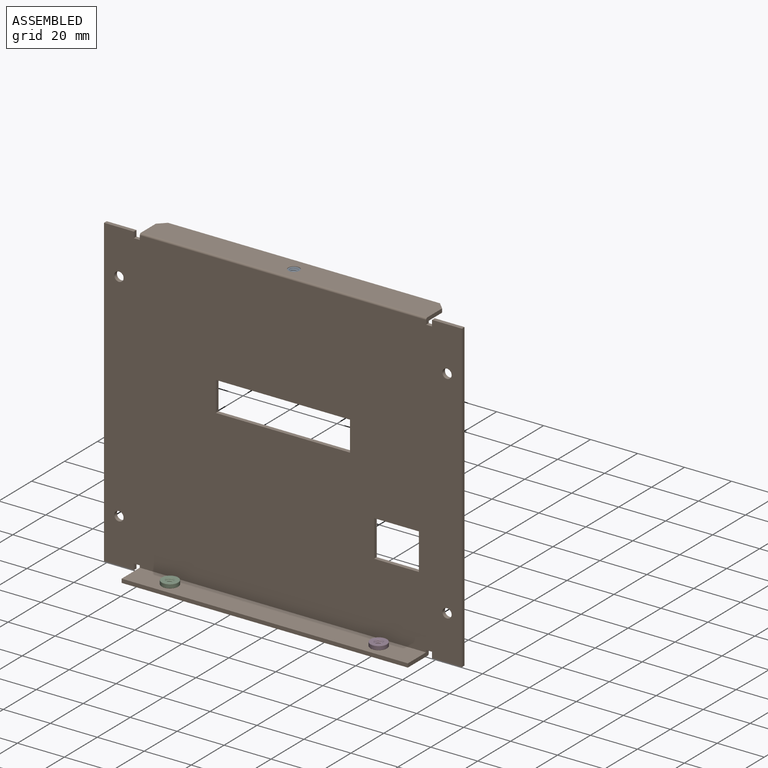
[diagram: assembled view]
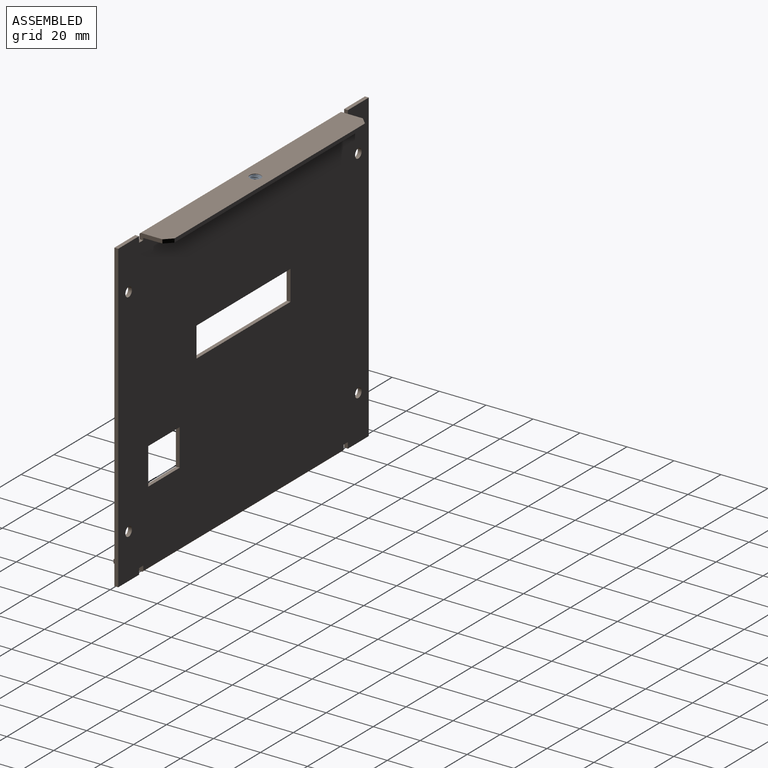
[diagram: assembled view, second angle]
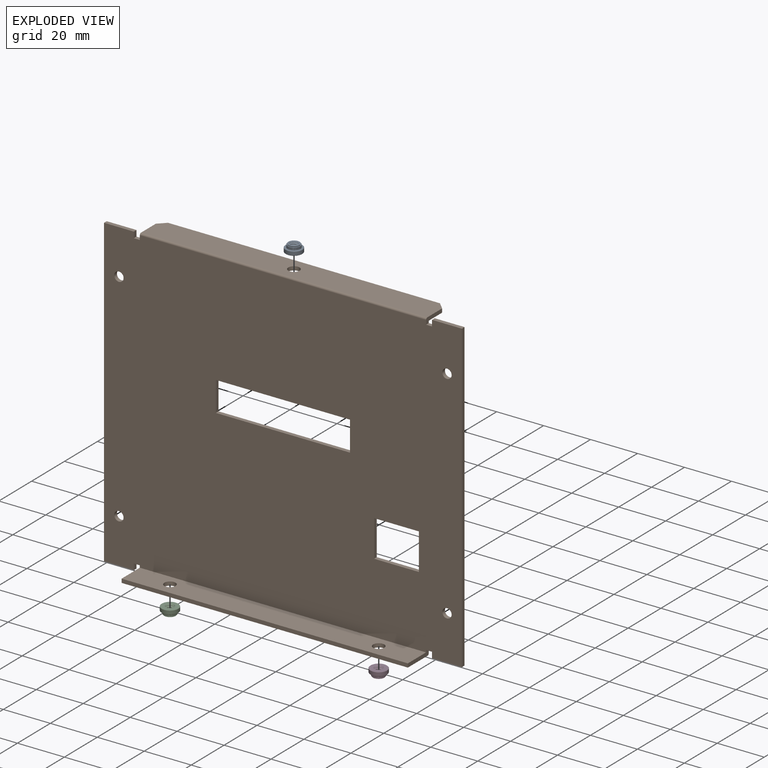
[diagram: exploded view]
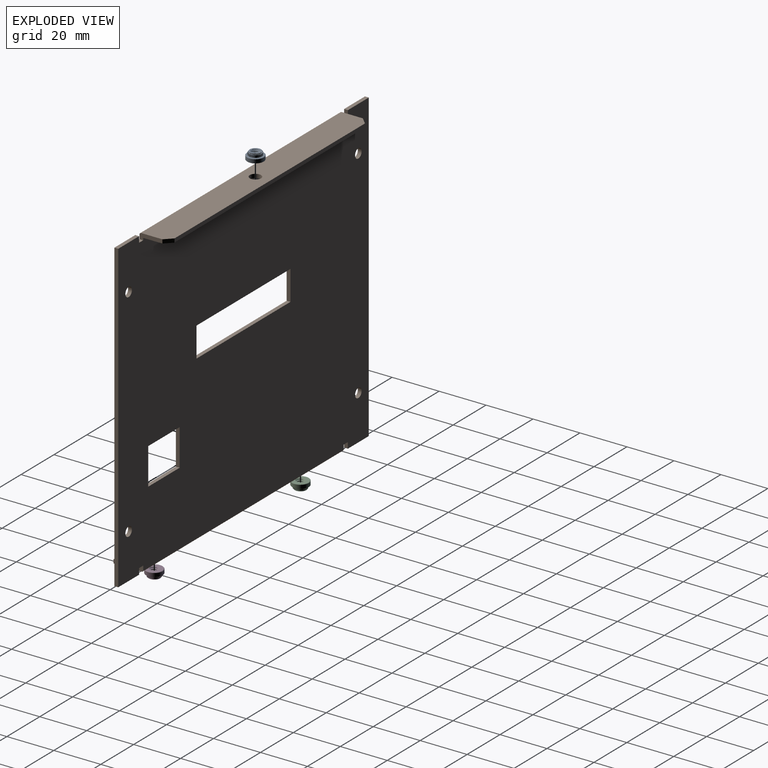
[diagram: exploded view, second angle]
ASSEMBLY  parts=4 mates=3
PART A: 159 faces, bbox 7.1x3.9x7.1 mm
  f0: bspline ~4.05x3.51mm, area 18.5mm2, adj f1,f3,f156,f157,f158
  f1: cylinder r=1.24mm len=2.47mm, axis (0,-1,0), area 2mm2, adj f0,f2,f156,f157,f158
  f2: bspline ~4.05x3.61mm, area 18.4mm2, adj f1,f3,f156,f158
  f3: cylinder r=1.75mm len=3.51mm, axis (0,-1,0), area 4.6mm2, adj f0,f2,f156,f158
  f4: cylinder r=2.71mm len=1.07mm, axis (0,-1,0), area 0.4mm2, adj f142,f146,f148,f151
  f5: cylinder r=2.71mm len=1.07mm, axis (0,-1,0), area 0.4mm2, adj f139,f143,f148,f151
  f6: cylinder r=2.71mm len=1.07mm, axis (0,-1,0), area 0.4mm2, adj f136,f140,f148,f151
  f7: cylinder r=2.71mm len=1.07mm, axis (0,-1,0), area 0.4mm2, adj f133,f137,f148,f151
  f8: cylinder r=2.71mm len=1.07mm, axis (0,-1,0), area 0.4mm2, adj f130,f134,f148,f151
  f9: cylinder r=2.71mm len=1.07mm, axis (0,-1,0), area 0.4mm2, adj f127,f131,f148,f151
  f10: cylinder r=2.71mm len=1.07mm, axis (0,-1,0), area 0.4mm2, adj f124,f128,f148,f151
  f11: cylinder r=2.71mm len=1.07mm, axis (0,-1,0), area 0.4mm2, adj f121,f125,f148,f151
  f12: cylinder r=2.71mm len=1.07mm, axis (0,-1,0), area 0.4mm2, adj f118,f122,f148,f151
  f13: cylinder r=2.71mm len=1.07mm, axis (0,-1,0), area 0.4mm2, adj f115,f119,f148,f151
  f14: cylinder r=2.71mm len=1.07mm, axis (0,-1,0), area 0.4mm2, adj f112,f116,f148,f151
  f15: cylinder r=2.71mm len=1.07mm, axis (0,-1,0), area 0.4mm2, adj f109,f113,f148,f151
  f16: cylinder r=2.71mm len=1.07mm, axis (0,-1,0), area 0.4mm2, adj f106,f110,f148,f151
  f17: cylinder r=2.71mm len=1.07mm, axis (0,-1,0), area 0.4mm2, adj f103,f107,f148,f151
  f18: cylinder r=2.71mm len=1.07mm, axis (0,-1,0), area 0.4mm2, adj f100,f104,f148,f151
  f19: cylinder r=2.71mm len=1.07mm, axis (0,-1,0), area 0.4mm2, adj f97,f101,f148,f151
  f20: cylinder r=2.71mm len=1.07mm, axis (0,-1,0), area 0.4mm2, adj f94,f98,f148,f151
  f21: cylinder r=2.71mm len=1.07mm, axis (0,-1,0), area 0.4mm2, adj f91,f95,f148,f151
  f22: cylinder r=2.71mm len=1.07mm, axis (0,-1,0), area 0.4mm2, adj f88,f92,f148,f151
  f23: cylinder r=2.71mm len=1.07mm, axis (0,-1,0), area 0.4mm2, adj f85,f89,f148,f151
  f24: cylinder r=2.71mm len=1.07mm, axis (0,-1,0), area 0.4mm2, adj f82,f86,f148,f151
  f25: cylinder r=2.71mm len=1.07mm, axis (0,-1,0), area 0.4mm2, adj f79,f83,f148,f151
  f26: cylinder r=2.71mm len=1.07mm, axis (0,-1,0), area 0.4mm2, adj f76,f80,f148,f151
  f27: cylinder r=2.71mm len=1.07mm, axis (0,-1,0), area 0.4mm2, adj f73,f77,f148,f151
  f28: cylinder r=2.71mm len=1.07mm, axis (0,-1,0), area 0.4mm2, adj f70,f74,f148,f151
  f29: cylinder r=2.71mm len=1.07mm, axis (0,-1,0), area 0.4mm2, adj f67,f71,f148,f151
  f30: cylinder r=2.71mm len=1.07mm, axis (0,-1,0), area 0.4mm2, adj f64,f68,f148,f151
  f31: cylinder r=2.71mm len=1.07mm, axis (0,-1,0), area 0.4mm2, adj f61,f65,f148,f151
  f32: cylinder r=2.71mm len=1.07mm, axis (0,-1,0), area 0.4mm2, adj f58,f62,f148,f151
  f33: cylinder r=2.71mm len=1.07mm, axis (0,-1,0), area 0.4mm2, adj f55,f59,f148,f151
  f34: cylinder r=2.71mm len=1.07mm, axis (0,-1,0), area 0.4mm2, adj f52,f56,f148,f151
  f35: cylinder r=2.71mm len=1.07mm, axis (0,-1,0), area 0.4mm2, adj f49,f53,f148,f151
  f36: cylinder r=2.71mm len=1.07mm, axis (0,-1,0), area 0.4mm2, adj f46,f50,f148,f151
  f37: cylinder r=2.71mm len=1.07mm, axis (0,-1,0), area 0.4mm2, adj f43,f47,f148,f151
  f38: cylinder r=2.71mm len=1.07mm, axis (0,-1,0), area 0.4mm2, adj f40,f44,f148,f151
  f39: cylinder r=2.71mm len=1.07mm, axis (0,-1,0), area 0.4mm2, adj f41,f145,f148,f151
  f40: plane 1.07x0.19mm, normal (1,0,0), area 0.2mm2, adj f38,f42,f148,f151
  f41: plane 1.07x0.19mm, normal (-1,0,0), area 0.2mm2, adj f39,f42,f148,f151
  f42: plane 1.07x0.13mm, normal (0,0,1), area 0.1mm2, adj f40,f41,f148,f151
  f43: plane 1.07x0.19mm, normal (0.98,0,0.17), area 0.2mm2, adj f37,f45,f148,f151
  f44: plane 1.07x0.19mm, normal (-0.98,0,-0.17), area 0.2mm2, adj f38,f45,f148,f151
  f45: plane 1.07x0.13mm, normal (-0.17,0,0.98), area 0.1mm2, adj f43,f44,f148,f151
  f46: plane 1.07x0.18mm, normal (0.94,0,0.34), area 0.2mm2, adj f36,f48,f148,f151
  f47: plane 1.07x0.18mm, normal (-0.94,0,-0.34), area 0.2mm2, adj f37,f48,f148,f151
  f48: plane 1.07x0.12mm, normal (-0.34,0,0.94), area 0.1mm2, adj f46,f47,f148,f151
  f49: plane 1.07x0.16mm, normal (0.87,0,0.5), area 0.2mm2, adj f35,f51,f148,f151
  f50: plane 1.07x0.16mm, normal (-0.87,0,-0.5), area 0.2mm2, adj f36,f51,f148,f151
  f51: plane 1.07x0.11mm, normal (-0.5,0,0.87), area 0.1mm2, adj f49,f50,f148,f151
  f52: plane 1.07x0.15mm, normal (0.77,0,0.64), area 0.2mm2, adj f34,f54,f148,f151
  f53: plane 1.07x0.15mm, normal (-0.77,0,-0.64), area 0.2mm2, adj f35,f54,f148,f151
  f54: plane 1.07x0.1mm, normal (-0.64,0,0.77), area 0.1mm2, adj f52,f53,f148,f151
  f55: plane 1.07x0.15mm, normal (0.64,0,0.77), area 0.2mm2, adj f33,f57,f148,f151
  f56: plane 1.07x0.15mm, normal (-0.64,0,-0.77), area 0.2mm2, adj f34,f57,f148,f151
  f57: plane 1.07x0.1mm, normal (-0.77,0,0.64), area 0.1mm2, adj f55,f56,f148,f151
  f58: plane 1.07x0.16mm, normal (0.5,0,0.87), area 0.2mm2, adj f32,f60,f148,f151
  f59: plane 1.07x0.16mm, normal (-0.5,0,-0.87), area 0.2mm2, adj f33,f60,f148,f151
  f60: plane 1.07x0.11mm, normal (-0.87,0,0.5), area 0.1mm2, adj f58,f59,f148,f151
  f61: plane 1.07x0.18mm, normal (0.34,0,0.94), area 0.2mm2, adj f31,f63,f148,f151
  f62: plane 1.07x0.18mm, normal (-0.34,0,-0.94), area 0.2mm2, adj f32,f63,f148,f151
  f63: plane 1.07x0.12mm, normal (-0.94,0,0.34), area 0.1mm2, adj f61,f62,f148,f151
  f64: plane 1.07x0.19mm, normal (0.17,0,0.98), area 0.2mm2, adj f30,f66,f148,f151
  f65: plane 1.07x0.19mm, normal (-0.17,0,-0.98), area 0.2mm2, adj f31,f66,f148,f151
  f66: plane 1.07x0.13mm, normal (-0.98,0,0.17), area 0.1mm2, adj f64,f65,f148,f151
  f67: plane 1.07x0.19mm, normal (0,0,1), area 0.2mm2, adj f29,f69,f148,f151
  f68: plane 1.07x0.19mm, normal (0,0,-1), area 0.2mm2, adj f30,f69,f148,f151
  f69: plane 1.07x0.13mm, normal (-1,0,0), area 0.1mm2, adj f67,f68,f148,f151
  f70: plane 1.07x0.19mm, normal (-0.17,0,0.98), area 0.2mm2, adj f28,f72,f148,f151
  f71: plane 1.07x0.19mm, normal (0.17,0,-0.98), area 0.2mm2, adj f29,f72,f148,f151
  f72: plane 1.07x0.13mm, normal (-0.98,0,-0.17), area 0.1mm2, adj f70,f71,f148,f151
  f73: plane 1.07x0.18mm, normal (-0.34,0,0.94), area 0.2mm2, adj f27,f75,f148,f151
  f74: plane 1.07x0.18mm, normal (0.34,0,-0.94), area 0.2mm2, adj f28,f75,f148,f151
  f75: plane 1.07x0.12mm, normal (-0.94,0,-0.34), area 0.1mm2, adj f73,f74,f148,f151
  f76: plane 1.07x0.16mm, normal (-0.5,0,0.87), area 0.2mm2, adj f26,f78,f148,f151
  f77: plane 1.07x0.16mm, normal (0.5,0,-0.87), area 0.2mm2, adj f27,f78,f148,f151
  f78: plane 1.07x0.11mm, normal (-0.87,0,-0.5), area 0.1mm2, adj f76,f77,f148,f151
  f79: plane 1.07x0.15mm, normal (-0.64,0,0.77), area 0.2mm2, adj f25,f81,f148,f151
  f80: plane 1.07x0.15mm, normal (0.64,0,-0.77), area 0.2mm2, adj f26,f81,f148,f151
  f81: plane 1.07x0.1mm, normal (-0.77,0,-0.64), area 0.1mm2, adj f79,f80,f148,f151
  f82: plane 1.07x0.15mm, normal (-0.77,0,0.64), area 0.2mm2, adj f24,f84,f148,f151
  f83: plane 1.07x0.15mm, normal (0.77,0,-0.64), area 0.2mm2, adj f25,f84,f148,f151
  f84: plane 1.07x0.1mm, normal (-0.64,0,-0.77), area 0.1mm2, adj f82,f83,f148,f151
  f85: plane 1.07x0.16mm, normal (-0.87,0,0.5), area 0.2mm2, adj f23,f87,f148,f151
  f86: plane 1.07x0.16mm, normal (0.87,0,-0.5), area 0.2mm2, adj f24,f87,f148,f151
  f87: plane 1.07x0.11mm, normal (-0.5,0,-0.87), area 0.1mm2, adj f85,f86,f148,f151
  f88: plane 1.07x0.18mm, normal (-0.94,0,0.34), area 0.2mm2, adj f22,f90,f148,f151
  f89: plane 1.07x0.18mm, normal (0.94,0,-0.34), area 0.2mm2, adj f23,f90,f148,f151
  f90: plane 1.07x0.12mm, normal (-0.34,0,-0.94), area 0.1mm2, adj f88,f89,f148,f151
  f91: plane 1.07x0.19mm, normal (-0.98,0,0.17), area 0.2mm2, adj f21,f93,f148,f151
  f92: plane 1.07x0.19mm, normal (0.98,0,-0.17), area 0.2mm2, adj f22,f93,f148,f151
  f93: plane 1.07x0.13mm, normal (-0.17,0,-0.98), area 0.1mm2, adj f91,f92,f148,f151
  f94: plane 1.07x0.19mm, normal (-1,0,0), area 0.2mm2, adj f20,f96,f148,f151
  f95: plane 1.07x0.19mm, normal (1,0,0), area 0.2mm2, adj f21,f96,f148,f151
  f96: plane 1.07x0.13mm, normal (0,0,-1), area 0.1mm2, adj f94,f95,f148,f151
  f97: plane 1.07x0.19mm, normal (-0.98,0,-0.17), area 0.2mm2, adj f19,f99,f148,f151
  f98: plane 1.07x0.19mm, normal (0.98,0,0.17), area 0.2mm2, adj f20,f99,f148,f151
  f99: plane 1.07x0.13mm, normal (0.17,0,-0.98), area 0.1mm2, adj f97,f98,f148,f151
  f100: plane 1.07x0.18mm, normal (-0.94,0,-0.34), area 0.2mm2, adj f18,f102,f148,f151
  f101: plane 1.07x0.18mm, normal (0.94,0,0.34), area 0.2mm2, adj f19,f102,f148,f151
  f102: plane 1.07x0.12mm, normal (0.34,0,-0.94), area 0.1mm2, adj f100,f101,f148,f151
  f103: plane 1.07x0.16mm, normal (-0.87,0,-0.5), area 0.2mm2, adj f17,f105,f148,f151
  f104: plane 1.07x0.16mm, normal (0.87,0,0.5), area 0.2mm2, adj f18,f105,f148,f151
  f105: plane 1.07x0.11mm, normal (0.5,0,-0.87), area 0.1mm2, adj f103,f104,f148,f151
  f106: plane 1.07x0.15mm, normal (-0.77,0,-0.64), area 0.2mm2, adj f16,f108,f148,f151
  f107: plane 1.07x0.15mm, normal (0.77,0,0.64), area 0.2mm2, adj f17,f108,f148,f151
  f108: plane 1.07x0.1mm, normal (0.64,0,-0.77), area 0.1mm2, adj f106,f107,f148,f151
  f109: plane 1.07x0.15mm, normal (-0.64,0,-0.77), area 0.2mm2, adj f15,f111,f148,f151
  f110: plane 1.07x0.15mm, normal (0.64,0,0.77), area 0.2mm2, adj f16,f111,f148,f151
  f111: plane 1.07x0.1mm, normal (0.77,0,-0.64), area 0.1mm2, adj f109,f110,f148,f151
  f112: plane 1.07x0.16mm, normal (-0.5,0,-0.87), area 0.2mm2, adj f14,f114,f148,f151
  f113: plane 1.07x0.16mm, normal (0.5,0,0.87), area 0.2mm2, adj f15,f114,f148,f151
  f114: plane 1.07x0.11mm, normal (0.87,0,-0.5), area 0.1mm2, adj f112,f113,f148,f151
  f115: plane 1.07x0.18mm, normal (-0.34,0,-0.94), area 0.2mm2, adj f13,f117,f148,f151
  f116: plane 1.07x0.18mm, normal (0.34,0,0.94), area 0.2mm2, adj f14,f117,f148,f151
  f117: plane 1.07x0.12mm, normal (0.94,0,-0.34), area 0.1mm2, adj f115,f116,f148,f151
  f118: plane 1.07x0.19mm, normal (-0.17,0,-0.98), area 0.2mm2, adj f12,f120,f148,f151
  f119: plane 1.07x0.19mm, normal (0.17,0,0.98), area 0.2mm2, adj f13,f120,f148,f151
  f120: plane 1.07x0.13mm, normal (0.98,0,-0.17), area 0.1mm2, adj f118,f119,f148,f151
  f121: plane 1.07x0.19mm, normal (0,0,-1), area 0.2mm2, adj f11,f123,f148,f151
  f122: plane 1.07x0.19mm, normal (0,0,1), area 0.2mm2, adj f12,f123,f148,f151
  f123: plane 1.07x0.13mm, normal (1,0,0), area 0.1mm2, adj f121,f122,f148,f151
  f124: plane 1.07x0.19mm, normal (0.17,0,-0.98), area 0.2mm2, adj f10,f126,f148,f151
  f125: plane 1.07x0.19mm, normal (-0.17,0,0.98), area 0.2mm2, adj f11,f126,f148,f151
  f126: plane 1.07x0.13mm, normal (0.98,0,0.17), area 0.1mm2, adj f124,f125,f148,f151
  f127: plane 1.07x0.18mm, normal (0.34,0,-0.94), area 0.2mm2, adj f9,f129,f148,f151
  f128: plane 1.07x0.18mm, normal (-0.34,0,0.94), area 0.2mm2, adj f10,f129,f148,f151
  f129: plane 1.07x0.12mm, normal (0.94,0,0.34), area 0.1mm2, adj f127,f128,f148,f151
  f130: plane 1.07x0.16mm, normal (0.5,0,-0.87), area 0.2mm2, adj f8,f132,f148,f151
  f131: plane 1.07x0.16mm, normal (-0.5,0,0.87), area 0.2mm2, adj f9,f132,f148,f151
  f132: plane 1.07x0.11mm, normal (0.87,0,0.5), area 0.1mm2, adj f130,f131,f148,f151
  f133: plane 1.07x0.15mm, normal (0.64,0,-0.77), area 0.2mm2, adj f7,f135,f148,f151
  f134: plane 1.07x0.15mm, normal (-0.64,0,0.77), area 0.2mm2, adj f8,f135,f148,f151
  f135: plane 1.07x0.1mm, normal (0.77,0,0.64), area 0.1mm2, adj f133,f134,f148,f151
  f136: plane 1.07x0.15mm, normal (0.77,0,-0.64), area 0.2mm2, adj f6,f138,f148,f151
  f137: plane 1.07x0.15mm, normal (-0.77,0,0.64), area 0.2mm2, adj f7,f138,f148,f151
  f138: plane 1.07x0.1mm, normal (0.64,0,0.77), area 0.1mm2, adj f136,f137,f148,f151
  f139: plane 1.07x0.16mm, normal (0.87,0,-0.5), area 0.2mm2, adj f5,f141,f148,f151
  f140: plane 1.07x0.16mm, normal (-0.87,0,0.5), area 0.2mm2, adj f6,f141,f148,f151
  f141: plane 1.07x0.11mm, normal (0.5,0,0.87), area 0.1mm2, adj f139,f140,f148,f151
  f142: plane 1.07x0.18mm, normal (0.94,0,-0.34), area 0.2mm2, adj f4,f144,f148,f151
  f143: plane 1.07x0.18mm, normal (-0.94,0,0.34), area 0.2mm2, adj f5,f144,f148,f151
  f144: plane 1.07x0.12mm, normal (0.34,0,0.94), area 0.1mm2, adj f142,f143,f148,f151
  f145: plane 1.07x0.19mm, normal (0.98,0,-0.17), area 0.2mm2, adj f39,f147,f148,f151
  f146: plane 1.07x0.19mm, normal (-0.98,0,0.17), area 0.2mm2, adj f4,f147,f148,f151
  f147: plane 1.07x0.13mm, normal (0.17,0,0.98), area 0.1mm2, adj f145,f146,f148,f151
  f148: plane 6.86x6.86mm, normal (0,1,0), area 14.8mm2, adj f4,f5,f6,f7,f8,f9,f10,f11
  f149: cylinder r=3.56mm len=7.11mm, axis (0,-1,0), area 34.1mm2, adj f154,f155
  f150: plane 6.86x6.86mm, normal (0,-1,0), area 26.7mm2, adj f154,f156
  f151: plane 5.41x5.41mm, normal (0,1,0), area 5.7mm2, adj f4,f5,f6,f7,f8,f9,f10,f11
  f152: cone r=2.41mm half-angle=20deg, axis (0,1,0), area 5.6mm2, adj f151,f153
  f153: plane 4.83x4.83mm, normal (0,1,0), area 8.1mm2, adj f152,f158
  f154: cone r=3.43mm half-angle=45deg, axis (0,1,0), area 3.9mm2, adj f149,f150
  f155: cone r=3.56mm half-angle=45deg, axis (0,-1,0), area 3.9mm2, adj f148,f149
  f156: cone r=1.8mm half-angle=45deg, axis (0,-1,0), area 4.3mm2, adj f0,f1,f2,f3,f150,f157
  f157: cone r=1.8mm half-angle=45deg, axis (0,-1,0), area 0mm2, adj f0,f1,f156
  f158: cone r=1.8mm half-angle=45deg, axis (0,1,0), area 4.4mm2, adj f0,f1,f2,f3,f153
PART B: 45 faces, bbox 152.4x23.9x130.3 mm
  f0: plane 12.7x1.63mm, normal (0,0,-1), area 20.6mm2, adj f2,f3,f23,f42
  f1: plane 121.92x11.94mm, normal (0,0,-1), area 1419.9mm2, adj f34,f35,f37,f38,f39,f44
  f2: plane 152.4x130.3mm, normal (0,-1,0), area 18467.6mm2, adj f0,f4,f7,f9,f10,f11,f12,f13
  f3: plane 152.4x130.3mm, normal (0,1,0), area 18467.6mm2, adj f0,f4,f7,f8,f9,f10,f11,f12
  f4: plane 12.7x1.63mm, normal (0,0,1), area 20.6mm2, adj f2,f3,f9,f32
  f5: plane 121.92x12.04mm, normal (0,0,1), area 1440.8mm2, adj f6,f24,f25,f26,f27,f28,f33
  f6: plane 115.82x1.63mm, normal (0,1,0), area 188.3mm2, adj f5,f8,f27,f28
  f7: plane 12.7x1.63mm, normal (0,0,1), area 20.6mm2, adj f2,f3,f23,f29
  f8: plane 121.92x11.18mm, normal (0,0,-1), area 1335.5mm2, adj f3,f6,f24,f25,f26,f27,f28
  f9: plane 130.3x1.63mm, normal (-1,0,0), area 211.8mm2, adj f2,f3,f4,f10
  f10: plane 12.7x1.63mm, normal (0,0,-1), area 20.6mm2, adj f2,f3,f9,f41
  f11: plane 12.7x1.63mm, normal (1,0,0), area 20.6mm2, adj f2,f3,f12,f17
  f12: plane 57.15x1.63mm, normal (0,0,-1), area 92.9mm2, adj f2,f3,f11,f13
  f13: plane 12.7x1.63mm, normal (-1,0,0), area 20.6mm2, adj f2,f3,f12,f17
  f14: plane 15.62x1.63mm, normal (-1,0,0), area 25.4mm2, adj f2,f3,f15,f18
  f15: plane 19.1x1.63mm, normal (0,0,1), area 31.1mm2, adj f2,f3,f14,f16
  f16: plane 15.62x1.63mm, normal (1,0,0), area 25.4mm2, adj f2,f3,f15,f18
  f17: plane 57.15x1.63mm, normal (0,0,1), area 92.9mm2, adj f2,f3,f11,f13
  f18: plane 19.1x1.63mm, normal (0,0,-1), area 31.1mm2, adj f2,f3,f14,f16
  f19: cylinder r=1.98mm len=3.96mm, axis (0,1,0), area 20.2mm2, adj f2,f3
  f20: cylinder r=1.98mm len=3.96mm, axis (0,1,0), area 20.2mm2, adj f2,f3
  f21: cylinder r=1.98mm len=3.96mm, axis (0,1,0), area 20.2mm2, adj f2,f3
  f22: cylinder r=1.98mm len=3.96mm, axis (0,1,0), area 20.2mm2, adj f2,f3
  f23: plane 130.3x1.63mm, normal (1,0,0), area 211.8mm2, adj f0,f2,f3,f7
  f24: plane 9.75x2.54mm, normal (-1,0,0), area 17.2mm2, adj f2,f3,f5,f8,f27,f31,f33
  f25: plane 9.75x2.54mm, normal (1,0,0), area 17.2mm2, adj f2,f3,f5,f8,f28,f30,f33
  f26: cylinder r=2.38mm len=4.76mm, axis (0,0,1), area 24.3mm2, adj f5,f8
  f27: plane 3.05x3.05mm, normal (-0.71,0.71,0), area 7mm2, adj f5,f6,f8,f24
  f28: plane 3.05x3.05mm, normal (0.71,0.71,0), area 7mm2, adj f5,f6,f8,f25
  f29: plane 2.54x1.63mm, normal (-1,0,0), area 4.1mm2, adj f2,f3,f7,f30
  f30: plane 2.54x1.63mm, normal (0,0,1), area 4.1mm2, adj f2,f3,f25,f29
  f31: plane 2.54x1.63mm, normal (0,0,1), area 4.1mm2, adj f2,f3,f24,f32
  f32: plane 2.54x1.63mm, normal (1,0,0), area 4.1mm2, adj f2,f3,f4,f31
  f33: cylinder r=0.76mm len=121.92mm, axis (1,0,0), area 145.9mm2, adj f2,f5,f24,f25
  f34: plane 12.7x2.54mm, normal (-1,0,0), area 22mm2, adj f1,f2,f3,f36,f37,f40,f44
  f35: plane 12.7x2.54mm, normal (1,0,0), area 22mm2, adj f1,f2,f3,f36,f37,f43,f44
  f36: plane 121.92x11.07mm, normal (0,0,1), area 1314.6mm2, adj f2,f34,f35,f37,f38,f39
  f37: plane 121.92x1.63mm, normal (0,-1,0), area 198.2mm2, adj f1,f34,f35,f36
  f38: cylinder r=2.38mm len=4.76mm, axis (0,0,-1), area 24.3mm2, adj f1,f36
  f39: cylinder r=2.38mm len=4.76mm, axis (0,0,-1), area 24.3mm2, adj f1,f36
  f40: plane 2.54x1.63mm, normal (0,0,-1), area 4.1mm2, adj f2,f3,f34,f41
  f41: plane 2.54x1.63mm, normal (1,0,0), area 4.1mm2, adj f2,f3,f10,f40
  f42: plane 2.54x1.63mm, normal (-1,0,0), area 4.1mm2, adj f0,f2,f3,f43
  f43: plane 2.54x1.63mm, normal (0,0,-1), area 4.1mm2, adj f2,f3,f35,f42
  f44: cylinder r=0.76mm len=121.92mm, axis (1,0,0), area 145.9mm2, adj f1,f3,f34,f35
PART C: same geometry as A
PART D: same geometry as A
PLACE A rot(axis=(1,0,0),90deg) t=(-11.91,-0.49,62.57)mm
PLACE B t=(-11.91,-5.57,0.82)mm
PLACE C rot(axis=(-1,0,0),90deg) t=(-56.36,-12.43,-60.93)mm
PLACE D rot(axis=(-1,0,0),90deg) t=(32.54,-12.43,-60.93)mm
MATE fastened A.f1 <-> B.f26  axis (0,0,1) through (-11.91,-0.49,64.34)mm
MATE fastened D.f1 <-> B.f38  axis (0,0,-1) through (32.54,-12.43,-62.71)mm
MATE fastened C.f1 <-> B.f39  axis (0,0,-1) through (-56.36,-12.43,-62.71)mm
